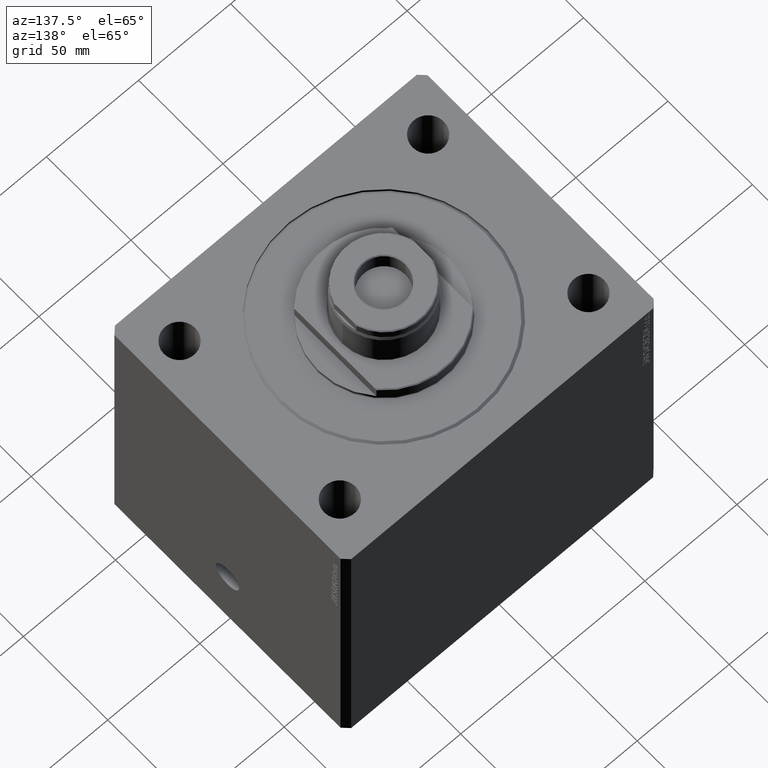
[diagram: clean part render]
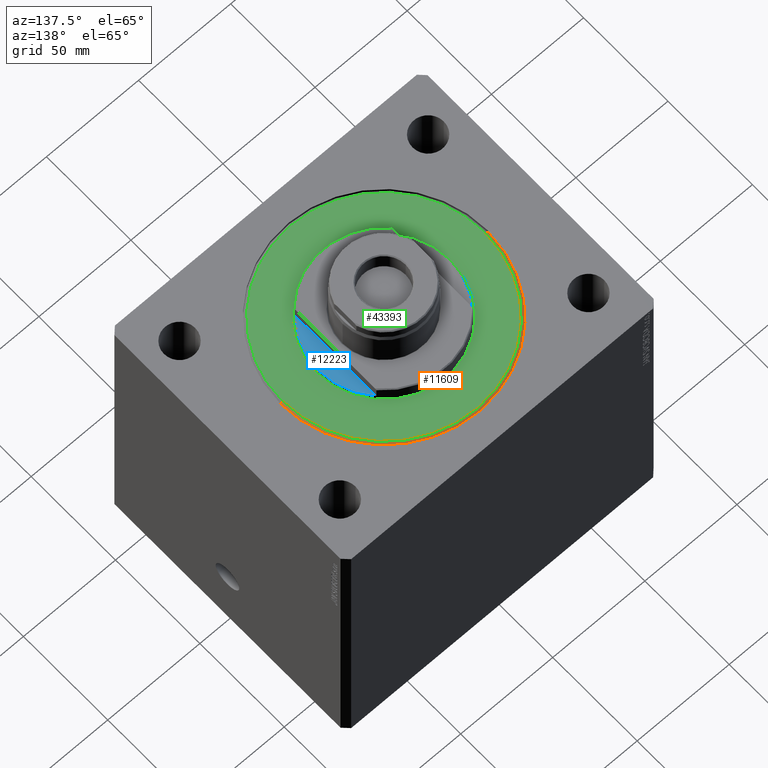
[diagram: same view with three faces highlighted in distinct colors, each labeled with its STEP entity id]
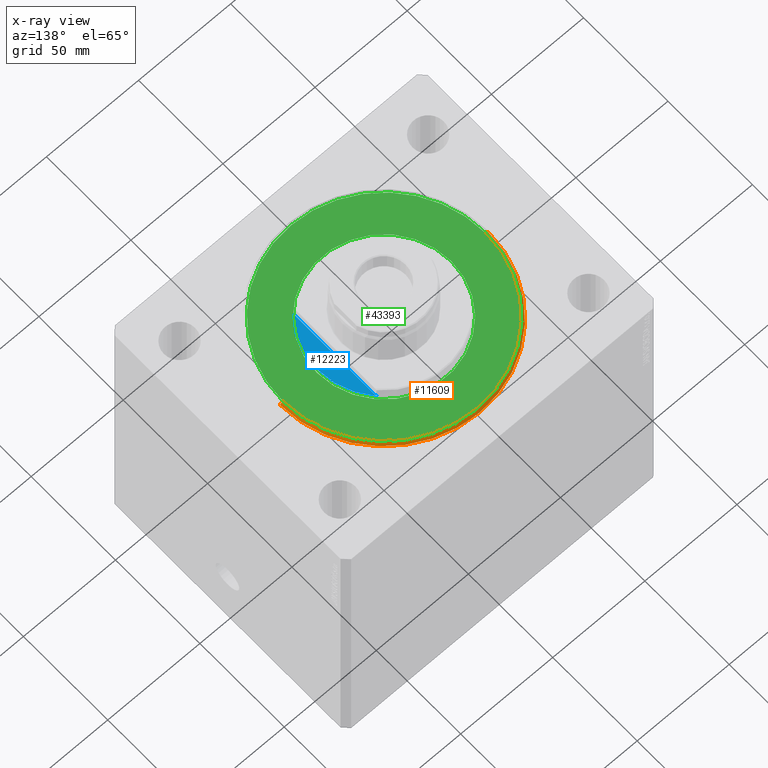
[diagram: x-ray of the same camera — body ghosted, the three highlighted faces saturated]
A machine part, auxiliary view with three faces highlighted in distinct colors.
The next image is the same camera in x-ray (body ghosted, the three faces saturated) — at least one of them is partly hidden behind the body in this view.
Their STEP definitions:

[orange] entity #11609 — the highlighted conical surface has half-angle 45 deg.
#1515 = EDGE_LOOP ( 'NONE', ( #38525, #5300, #24343, #9662 ) ) ;
#1649 = LINE ( 'NONE', #18155, #32294 ) ;
#5300 = ORIENTED_EDGE ( 'NONE', *, *, #16517, .T. ) ;
#6803 = VERTEX_POINT ( 'NONE', #25006 ) ;
#7385 = CONICAL_SURFACE ( 'NONE', #30866, 56.50000000000000711, 0.7853981633974459475 ) ;
#7584 = EDGE_CURVE ( 'NONE', #40347, #17549, #12992, .T. ) ;
#9536 = EDGE_CURVE ( 'NONE', #39305, #6803, #27972, .T. ) ;
#9662 = ORIENTED_EDGE ( 'NONE', *, *, #39489, .F. ) ;
#10004 = DIRECTION ( 'NONE',  ( 0.7071067811865459074, 0.000000000000000000, 0.7071067811865491270 ) ) ;
#10565 = DIRECTION ( 'NONE',  ( -0.000000000000000000, -0.000000000000000000, 1.000000000000000000 ) ) ;
#11157 = CARTESIAN_POINT ( 'NONE',  ( -55.00000000000000000, 6.827405905246494765E-15, 0.000000000000000000 ) ) ;
#11609 = ADVANCED_FACE ( 'NONE', ( #25096 ), #7385, .T. ) ;
#11822 = CARTESIAN_POINT ( 'NONE',  ( 56.50000000000000711, 0.000000000000000000, 1.500000000000015099 ) ) ;
#12038 = CARTESIAN_POINT ( 'NONE',  ( 0.000000000000000000, 0.000000000000000000, 1.500000000000015099 ) ) ;
#12992 = CIRCLE ( 'NONE', #41464, 56.50000000000000711 ) ;
#13629 = CARTESIAN_POINT ( 'NONE',  ( -56.50000000000000711, 0.000000000000000000, 1.500000000000015099 ) ) ;
#14599 = DIRECTION ( 'NONE',  ( 1.000000000000000000, 0.000000000000000000, 0.000000000000000000 ) ) ;
#14832 = DIRECTION ( 'NONE',  ( -0.000000000000000000, -0.000000000000000000, 1.000000000000000000 ) ) ;
#16517 = EDGE_CURVE ( 'NONE', #39305, #17549, #1649, .T. ) ;
#17549 = VERTEX_POINT ( 'NONE', #13629 ) ;
#18155 = CARTESIAN_POINT ( 'NONE',  ( -56.50000000000000711, 6.919254415182546126E-15, 1.500000000000015099 ) ) ;
#18807 = DIRECTION ( 'NONE',  ( -0.7071067811865459074, 8.659560562354913137E-17, 0.7071067811865491270 ) ) ;
#19891 = VECTOR ( 'NONE', #10004, 1000.000000000000114 ) ;
#21736 = DIRECTION ( 'NONE',  ( 1.000000000000000000, 0.000000000000000000, 0.000000000000000000 ) ) ;
#24343 = ORIENTED_EDGE ( 'NONE', *, *, #7584, .F. ) ;
#25006 = CARTESIAN_POINT ( 'NONE',  ( 55.00000000000000000, 0.000000000000000000, 0.000000000000000000 ) ) ;
#25096 = FACE_OUTER_BOUND ( 'NONE', #1515, .T. ) ;
#25626 = DIRECTION ( 'NONE',  ( 1.000000000000000000, 0.000000000000000000, 0.000000000000000000 ) ) ;
#27763 = DIRECTION ( 'NONE',  ( -0.000000000000000000, -0.000000000000000000, -1.000000000000000000 ) ) ;
#27972 = CIRCLE ( 'NONE', #29402, 55.00000000000000000 ) ;
#28750 = LINE ( 'NONE', #11822, #19891 ) ;
#29402 = AXIS2_PLACEMENT_3D ( 'NONE', #31109, #27763, #14599 ) ;
#30866 = AXIS2_PLACEMENT_3D ( 'NONE', #38692, #14832, #21736 ) ;
#31109 = CARTESIAN_POINT ( 'NONE',  ( 0.000000000000000000, 0.000000000000000000, 0.000000000000000000 ) ) ;
#32294 = VECTOR ( 'NONE', #18807, 1000.000000000000114 ) ;
#38405 = CARTESIAN_POINT ( 'NONE',  ( 56.50000000000000711, 6.919254415182546126E-15, 1.500000000000015099 ) ) ;
#38525 = ORIENTED_EDGE ( 'NONE', *, *, #9536, .F. ) ;
#38692 = CARTESIAN_POINT ( 'NONE',  ( 0.000000000000000000, 0.000000000000000000, 1.500000000000015099 ) ) ;
#39305 = VERTEX_POINT ( 'NONE', #11157 ) ;
#39489 = EDGE_CURVE ( 'NONE', #6803, #40347, #28750, .T. ) ;
#40347 = VERTEX_POINT ( 'NONE', #38405 ) ;
#41464 = AXIS2_PLACEMENT_3D ( 'NONE', #12038, #10565, #25626 ) ;

[blue] entity #12223 — the highlighted planar face has unit normal (0, 0, 1).
#1288 = DIRECTION ( 'NONE',  ( 0.000000000000000000, 0.000000000000000000, -1.000000000000000000 ) ) ;
#2868 = LINE ( 'NONE', #43668, #17980 ) ;
#6179 = VERTEX_POINT ( 'NONE', #15513 ) ;
#6957 = CARTESIAN_POINT ( 'NONE',  ( 0.000000000000000000, 0.000000000000000000, -2.000000000000000000 ) ) ;
#7660 = EDGE_CURVE ( 'NONE', #6179, #32697, #2868, .T. ) ;
#7867 = EDGE_CURVE ( 'NONE', #32697, #28397, #22928, .T. ) ;
#9723 = CIRCLE ( 'NONE', #26079, 36.00000000000000000 ) ;
#10085 = DIRECTION ( 'NONE',  ( 0.000000000000000000, 0.000000000000000000, -1.000000000000000000 ) ) ;
#10994 = ORIENTED_EDGE ( 'NONE', *, *, #7660, .T. ) ;
#11552 = DIRECTION ( 'NONE',  ( -1.000000000000000000, 0.000000000000000000, 0.000000000000000000 ) ) ;
#12223 = ADVANCED_FACE ( 'NONE', ( #27680 ), #43966, .T. ) ;
#15513 = CARTESIAN_POINT ( 'NONE',  ( -26.50000000000000000, 24.36698586202240691, -2.000000000000000000 ) ) ;
#17980 = VECTOR ( 'NONE', #29842, 1000.000000000000000 ) ;
#18451 = DIRECTION ( 'NONE',  ( -1.000000000000000000, 0.000000000000000000, 0.000000000000000000 ) ) ;
#21564 = CARTESIAN_POINT ( 'NONE',  ( 0.000000000000000000, 0.000000000000000000, -2.000000000000000000 ) ) ;
#21622 = AXIS2_PLACEMENT_3D ( 'NONE', #6957, #10085, #23670 ) ;
#22229 = AXIS2_PLACEMENT_3D ( 'NONE', #38956, #1288, #18451 ) ;
#22928 = CIRCLE ( 'NONE', #22229, 36.00000000000000000 ) ;
#23670 = DIRECTION ( 'NONE',  ( -1.000000000000000000, 0.000000000000000000, -0.000000000000000000 ) ) ;
#25303 = CARTESIAN_POINT ( 'NONE',  ( -36.00000000000000000, 4.408728476930470856E-15, -2.000000000000000000 ) ) ;
#26079 = AXIS2_PLACEMENT_3D ( 'NONE', #21564, #41207, #11552 ) ;
#27680 = FACE_OUTER_BOUND ( 'NONE', #37266, .T. ) ;
#28397 = VERTEX_POINT ( 'NONE', #25303 ) ;
#29371 = EDGE_CURVE ( 'NONE', #28397, #6179, #9723, .T. ) ;
#29842 = DIRECTION ( 'NONE',  ( -0.000000000000000000, -1.000000000000000000, -0.000000000000000000 ) ) ;
#32011 = ORIENTED_EDGE ( 'NONE', *, *, #7867, .T. ) ;
#32697 = VERTEX_POINT ( 'NONE', #36989 ) ;
#36989 = CARTESIAN_POINT ( 'NONE',  ( -26.50000000000000000, -24.36698586202240691, -2.000000000000000000 ) ) ;
#37266 = EDGE_LOOP ( 'NONE', ( #32011, #42713, #10994 ) ) ;
#38956 = CARTESIAN_POINT ( 'NONE',  ( 0.000000000000000000, 0.000000000000000000, -2.000000000000000000 ) ) ;
#41207 = DIRECTION ( 'NONE',  ( 0.000000000000000000, 0.000000000000000000, -1.000000000000000000 ) ) ;
#42713 = ORIENTED_EDGE ( 'NONE', *, *, #29371, .T. ) ;
#43668 = CARTESIAN_POINT ( 'NONE',  ( -26.50000000000000000, -36.36963018783666257, -2.000000000000000000 ) ) ;
#43966 = PLANE ( 'NONE',  #21622 ) ;

[green] entity #43393 — the highlighted planar face has unit normal (0, 0, -1).
#1984 = AXIS2_PLACEMENT_3D ( 'NONE', #28230, #41823, #25325 ) ;
#2026 = DIRECTION ( 'NONE',  ( -0.000000000000000000, -0.000000000000000000, -1.000000000000000000 ) ) ;
#5538 = ORIENTED_EDGE ( 'NONE', *, *, #27008, .T. ) ;
#6619 = CARTESIAN_POINT ( 'NONE',  ( -36.50000000000000000, 4.469960816887838430E-15, -2.168404344971008868E-16 ) ) ;
#6803 = VERTEX_POINT ( 'NONE', #25006 ) ;
#7771 = CARTESIAN_POINT ( 'NONE',  ( 36.50000000000000000, 0.000000000000000000, -2.168404344971008868E-16 ) ) ;
#8562 = VERTEX_POINT ( 'NONE', #6619 ) ;
#8840 = DIRECTION ( 'NONE',  ( 0.000000000000000000, 0.000000000000000000, 1.000000000000000000 ) ) ;
#8930 = ORIENTED_EDGE ( 'NONE', *, *, #33161, .T. ) ;
#9536 = EDGE_CURVE ( 'NONE', #39305, #6803, #27972, .T. ) ;
#11157 = CARTESIAN_POINT ( 'NONE',  ( -55.00000000000000000, 6.827405905246494765E-15, 0.000000000000000000 ) ) ;
#11762 = ORIENTED_EDGE ( 'NONE', *, *, #43766, .T. ) ;
#13762 = ORIENTED_EDGE ( 'NONE', *, *, #9536, .T. ) ;
#14544 = DIRECTION ( 'NONE',  ( 0.000000000000000000, 0.000000000000000000, 1.000000000000000000 ) ) ;
#14599 = DIRECTION ( 'NONE',  ( 1.000000000000000000, 0.000000000000000000, 0.000000000000000000 ) ) ;
#15634 = AXIS2_PLACEMENT_3D ( 'NONE', #39375, #8840, #22422 ) ;
#18863 = FACE_BOUND ( 'NONE', #33628, .T. ) ;
#20305 = CIRCLE ( 'NONE', #21738, 55.00000000000000000 ) ;
#21738 = AXIS2_PLACEMENT_3D ( 'NONE', #38816, #2026, #42820 ) ;
#21899 = VERTEX_POINT ( 'NONE', #7771 ) ;
#22422 = DIRECTION ( 'NONE',  ( 1.000000000000000000, 0.000000000000000000, -0.000000000000000000 ) ) ;
#24576 = CARTESIAN_POINT ( 'NONE',  ( 0.000000000000000000, 0.000000000000000000, 0.000000000000000000 ) ) ;
#24751 = EDGE_LOOP ( 'NONE', ( #5538, #13762 ) ) ;
#25006 = CARTESIAN_POINT ( 'NONE',  ( 55.00000000000000000, 0.000000000000000000, 0.000000000000000000 ) ) ;
#25325 = DIRECTION ( 'NONE',  ( 1.000000000000000000, 0.000000000000000000, 0.000000000000000000 ) ) ;
#25777 = PLANE ( 'NONE',  #15634 ) ;
#27008 = EDGE_CURVE ( 'NONE', #6803, #39305, #20305, .T. ) ;
#27763 = DIRECTION ( 'NONE',  ( -0.000000000000000000, -0.000000000000000000, -1.000000000000000000 ) ) ;
#27972 = CIRCLE ( 'NONE', #29402, 55.00000000000000000 ) ;
#28230 = CARTESIAN_POINT ( 'NONE',  ( 0.000000000000000000, 0.000000000000000000, 0.000000000000000000 ) ) ;
#29402 = AXIS2_PLACEMENT_3D ( 'NONE', #31109, #27763, #14599 ) ;
#31109 = CARTESIAN_POINT ( 'NONE',  ( 0.000000000000000000, 0.000000000000000000, 0.000000000000000000 ) ) ;
#33161 = EDGE_CURVE ( 'NONE', #21899, #8562, #37572, .T. ) ;
#33628 = EDGE_LOOP ( 'NONE', ( #8930, #11762 ) ) ;
#37006 = CIRCLE ( 'NONE', #40569, 36.50000000000000000 ) ;
#37572 = CIRCLE ( 'NONE', #1984, 36.50000000000000000 ) ;
#38176 = DIRECTION ( 'NONE',  ( 1.000000000000000000, 0.000000000000000000, 0.000000000000000000 ) ) ;
#38816 = CARTESIAN_POINT ( 'NONE',  ( 0.000000000000000000, 0.000000000000000000, 0.000000000000000000 ) ) ;
#39305 = VERTEX_POINT ( 'NONE', #11157 ) ;
#39375 = CARTESIAN_POINT ( 'NONE',  ( 0.000000000000000000, 0.000000000000000000, 0.000000000000000000 ) ) ;
#40569 = AXIS2_PLACEMENT_3D ( 'NONE', #24576, #14544, #38176 ) ;
#41823 = DIRECTION ( 'NONE',  ( 0.000000000000000000, 0.000000000000000000, 1.000000000000000000 ) ) ;
#42723 = FACE_OUTER_BOUND ( 'NONE', #24751, .T. ) ;
#42820 = DIRECTION ( 'NONE',  ( 1.000000000000000000, 0.000000000000000000, 0.000000000000000000 ) ) ;
#43393 = ADVANCED_FACE ( 'NONE', ( #18863, #42723 ), #25777, .F. ) ;
#43766 = EDGE_CURVE ( 'NONE', #8562, #21899, #37006, .T. ) ;